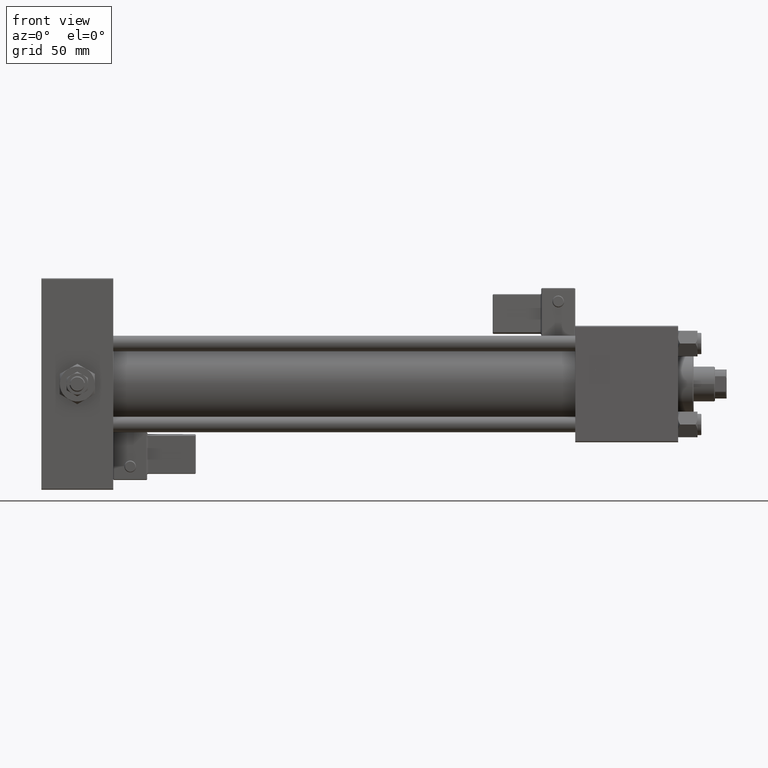
[diagram: clean part render]
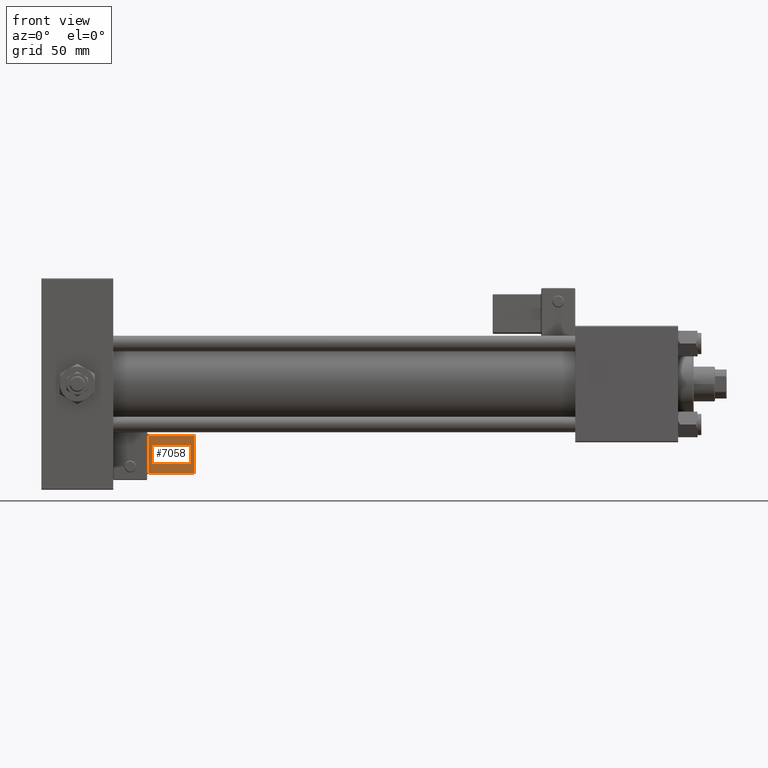
[diagram: same view with one face highlighted and labeled with its STEP entity id]
A machine part, front view. The second image highlights one B-rep face of the part: STEP entity #7058.
In plain terms, the highlighted planar face has unit normal (0, 0.9994, 0.0353).
Its self-contained STEP definition (entity closure, byte-faithful):
#1624 = EDGE_LOOP ( 'NONE', ( #23124, #22110, #17174, #1647 ) ) ;
#1647 = ORIENTED_EDGE ( 'NONE', *, *, #10367, .T. ) ;
#3899 = VERTEX_POINT ( 'NONE', #34992 ) ;
#5368 = VECTOR ( 'NONE', #15488, 1000.000000000000000 ) ;
#7058 = ADVANCED_FACE ( 'NONE', ( #48248 ), #44990, .F. ) ;
#8085 = LINE ( 'NONE', #11925, #37992 ) ;
#10367 = EDGE_CURVE ( 'NONE', #15487, #3899, #38341, .T. ) ;
#10714 = VERTEX_POINT ( 'NONE', #38814 ) ;
#11123 = DIRECTION ( 'NONE',  ( -0.000000000000000000, 1.000000000000000000, 0.000000000000000000 ) ) ;
#11925 = CARTESIAN_POINT ( 'NONE',  ( 33.24999999999999289, -32.24999999999999289, 22.00000000000000355 ) ) ;
#12543 = EDGE_CURVE ( 'NONE', #41254, #15487, #8085, .T. ) ;
#14760 = CARTESIAN_POINT ( 'NONE',  ( 33.24999999999999289, -32.24999999999999289, 2.500000000000008438 ) ) ;
#15487 = VERTEX_POINT ( 'NONE', #40742 ) ;
#15488 = DIRECTION ( 'NONE',  ( 1.000000000000000000, -0.000000000000000000, 1.334402673828313339E-16 ) ) ;
#16043 = DIRECTION ( 'NONE',  ( 0.000000000000000000, -0.000000000000000000, 1.000000000000000000 ) ) ;
#16275 = VECTOR ( 'NONE', #39596, 1000.000000000000000 ) ;
#17174 = ORIENTED_EDGE ( 'NONE', *, *, #12543, .T. ) ;
#18113 = DIRECTION ( 'NONE',  ( -1.000000000000000000, 0.000000000000000000, -1.334402673828313339E-16 ) ) ;
#20920 = LINE ( 'NONE', #37601, #5368 ) ;
#21298 = AXIS2_PLACEMENT_3D ( 'NONE', #44445, #11123, #16043 ) ;
#22110 = ORIENTED_EDGE ( 'NONE', *, *, #29366, .T. ) ;
#23124 = ORIENTED_EDGE ( 'NONE', *, *, #34362, .T. ) ;
#29366 = EDGE_CURVE ( 'NONE', #10714, #41254, #20920, .T. ) ;
#34362 = EDGE_CURVE ( 'NONE', #3899, #10714, #40153, .T. ) ;
#34798 = CARTESIAN_POINT ( 'NONE',  ( 33.75000000000000000, -32.24999999999999289, 21.50000000000000000 ) ) ;
#34992 = CARTESIAN_POINT ( 'NONE',  ( 9.250000000000003553, -32.24999999999999289, 21.50000000000000000 ) ) ;
#37601 = CARTESIAN_POINT ( 'NONE',  ( 33.75000000000000000, -32.24999999999999289, 2.500000000000009326 ) ) ;
#37992 = VECTOR ( 'NONE', #40632, 1000.000000000000000 ) ;
#38341 = LINE ( 'NONE', #34798, #43115 ) ;
#38814 = CARTESIAN_POINT ( 'NONE',  ( 9.250000000000005329, -32.24999999999999289, 2.500000000000004885 ) ) ;
#39596 = DIRECTION ( 'NONE',  ( 1.334402673828313339E-16, 0.000000000000000000, -1.000000000000000000 ) ) ;
#40153 = LINE ( 'NONE', #47760, #16275 ) ;
#40632 = DIRECTION ( 'NONE',  ( -1.734723475976807587E-16, -0.000000000000000000, 1.000000000000000000 ) ) ;
#40742 = CARTESIAN_POINT ( 'NONE',  ( 33.24999999999999289, -32.24999999999999289, 21.50000000000000000 ) ) ;
#41254 = VERTEX_POINT ( 'NONE', #14760 ) ;
#43115 = VECTOR ( 'NONE', #18113, 1000.000000000000000 ) ;
#44445 = CARTESIAN_POINT ( 'NONE',  ( 33.75000000000000000, -32.24999999999999289, 22.00000000000000355 ) ) ;
#44990 = PLANE ( 'NONE',  #21298 ) ;
#47760 = CARTESIAN_POINT ( 'NONE',  ( 9.250000000000005329, -32.24999999999999289, 2.000000000000005329 ) ) ;
#48248 = FACE_OUTER_BOUND ( 'NONE', #1624, .T. ) ;